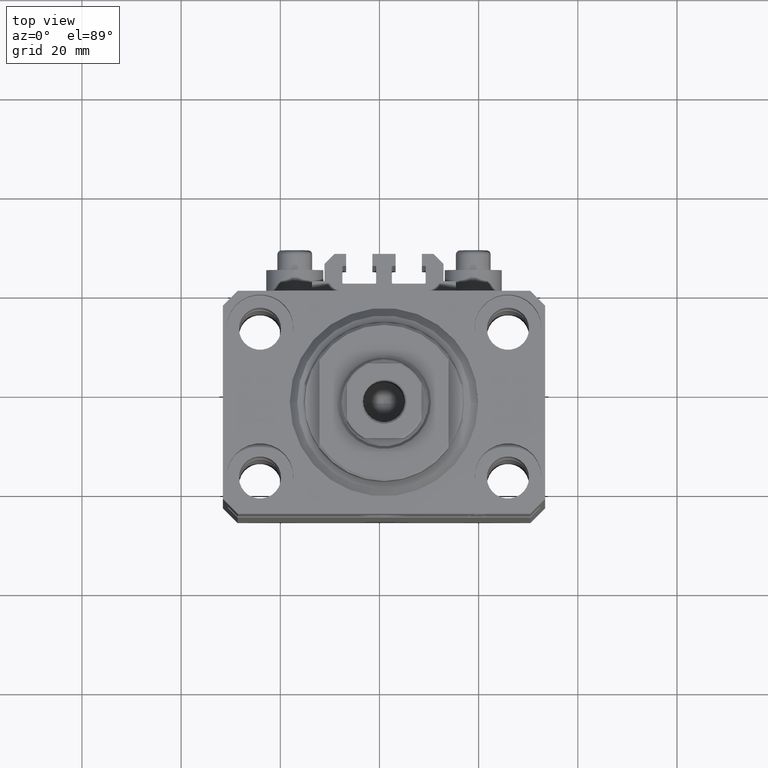
[diagram: clean part render]
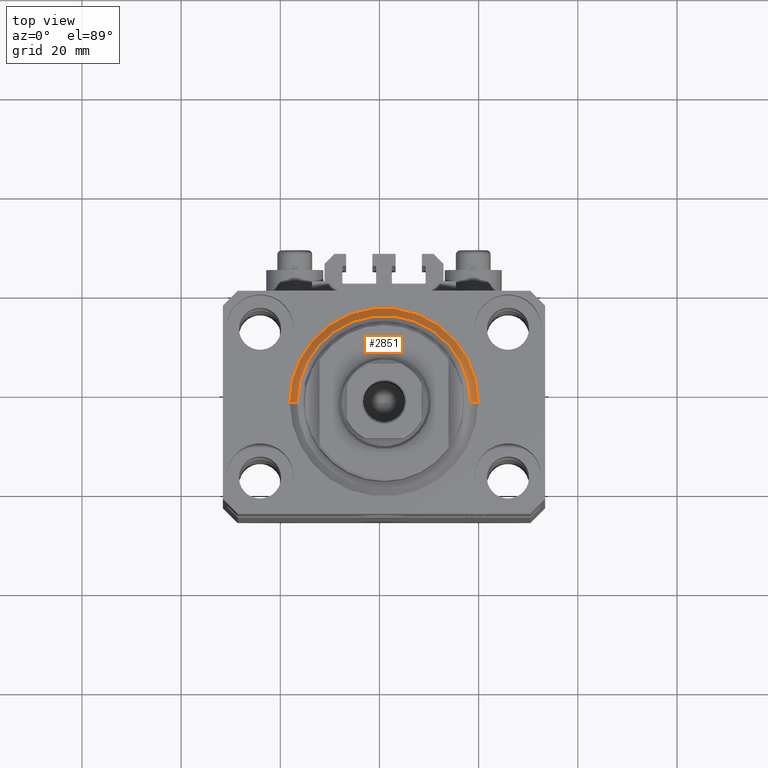
[diagram: same view with one face highlighted and labeled with its STEP entity id]
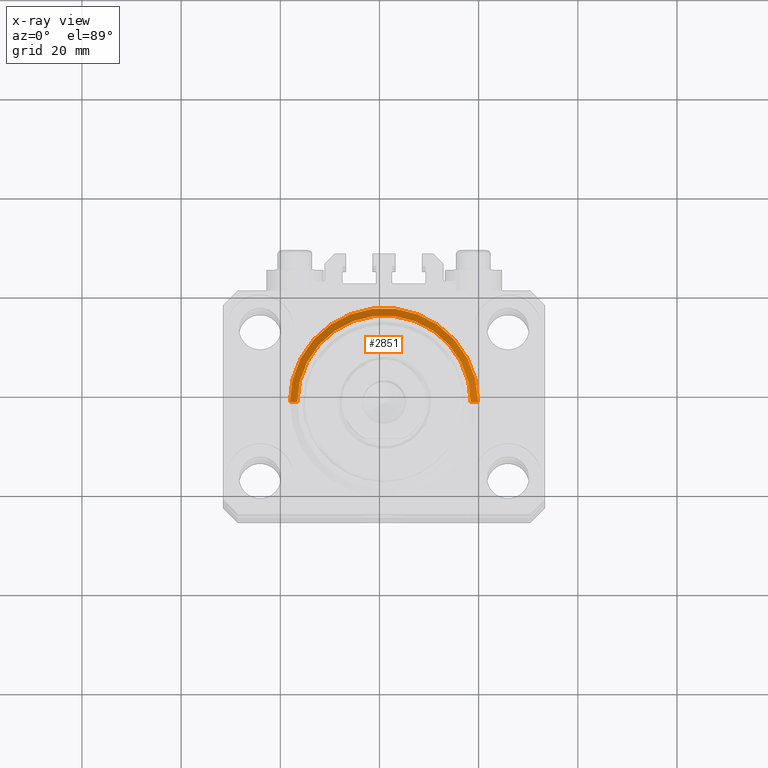
[diagram: x-ray of the same camera — body ghosted, the highlighted face saturated]
A machine part, top view. The second image highlights one B-rep face of the part: STEP entity #2851.
The next image is the same camera in x-ray: the body ghosted, the highlighted face saturated — about 0% of this face is hidden behind the body in this view.
In plain terms, the highlighted conical surface has half-angle 45 deg.
Its self-contained STEP definition (entity closure, byte-faithful):
#2617 = ORIENTED_EDGE ( 'NONE', *, *, #13875, .F. ) ;
#2851 = ADVANCED_FACE ( 'NONE', ( #3315 ), #28849, .T. ) ;
#3315 = FACE_OUTER_BOUND ( 'NONE', #25370, .T. ) ;
#3495 = DIRECTION ( 'NONE',  ( -0.000000000000000000, -0.000000000000000000, -1.000000000000000000 ) ) ;
#4002 = ORIENTED_EDGE ( 'NONE', *, *, #17216, .T. ) ;
#4702 = VERTEX_POINT ( 'NONE', #29815 ) ;
#5249 = CARTESIAN_POINT ( 'NONE',  ( -17.49999999999999645, 2.234980408443919215E-15, 0.000000000000000000 ) ) ;
#6481 = CARTESIAN_POINT ( 'NONE',  ( -19.00000000000000000, 2.326828918379970970E-15, 1.500000000000001332 ) ) ;
#6644 = CARTESIAN_POINT ( 'NONE',  ( 19.00000000000000000, 2.326828918379970970E-15, 1.500000000000001332 ) ) ;
#8613 = CIRCLE ( 'NONE', #45090, 17.49999999999999645 ) ;
#12485 = EDGE_CURVE ( 'NONE', #36639, #4702, #34501, .T. ) ;
#12943 = DIRECTION ( 'NONE',  ( -0.7071067811865483499, 8.659560562354942719E-17, 0.7071067811865467956 ) ) ;
#13875 = EDGE_CURVE ( 'NONE', #36062, #33926, #8613, .T. ) ;
#14290 = DIRECTION ( 'NONE',  ( 1.000000000000000000, 0.000000000000000000, 0.000000000000000000 ) ) ;
#15435 = DIRECTION ( 'NONE',  ( 1.000000000000000000, 0.000000000000000000, 0.000000000000000000 ) ) ;
#17216 = EDGE_CURVE ( 'NONE', #36062, #4702, #39174, .T. ) ;
#19293 = AXIS2_PLACEMENT_3D ( 'NONE', #29366, #26269, #19345 ) ;
#19345 = DIRECTION ( 'NONE',  ( 1.000000000000000000, 0.000000000000000000, 0.000000000000000000 ) ) ;
#21516 = CARTESIAN_POINT ( 'NONE',  ( 17.49999999999999645, 0.000000000000000000, 0.000000000000000000 ) ) ;
#22020 = AXIS2_PLACEMENT_3D ( 'NONE', #29092, #28158, #14290 ) ;
#22700 = ORIENTED_EDGE ( 'NONE', *, *, #12485, .F. ) ;
#24632 = EDGE_CURVE ( 'NONE', #33926, #36639, #28264, .T. ) ;
#25370 = EDGE_LOOP ( 'NONE', ( #2617, #4002, #22700, #33168 ) ) ;
#26269 = DIRECTION ( 'NONE',  ( -0.000000000000000000, -0.000000000000000000, 1.000000000000000000 ) ) ;
#28158 = DIRECTION ( 'NONE',  ( -0.000000000000000000, -0.000000000000000000, 1.000000000000000000 ) ) ;
#28264 = LINE ( 'NONE', #47086, #34749 ) ;
#28849 = CONICAL_SURFACE ( 'NONE', #22020, 19.00000000000000000, 0.7853981633974492782 ) ;
#29092 = CARTESIAN_POINT ( 'NONE',  ( 0.000000000000000000, 0.000000000000000000, 1.500000000000001332 ) ) ;
#29366 = CARTESIAN_POINT ( 'NONE',  ( 0.000000000000000000, 0.000000000000000000, 1.500000000000001332 ) ) ;
#29815 = CARTESIAN_POINT ( 'NONE',  ( -19.00000000000000000, 0.000000000000000000, 1.500000000000001332 ) ) ;
#33168 = ORIENTED_EDGE ( 'NONE', *, *, #24632, .F. ) ;
#33926 = VERTEX_POINT ( 'NONE', #21516 ) ;
#34501 = CIRCLE ( 'NONE', #19293, 19.00000000000000000 ) ;
#34749 = VECTOR ( 'NONE', #43496, 1000.000000000000000 ) ;
#36062 = VERTEX_POINT ( 'NONE', #5249 ) ;
#36193 = CARTESIAN_POINT ( 'NONE',  ( 0.000000000000000000, 0.000000000000000000, 0.000000000000000000 ) ) ;
#36639 = VERTEX_POINT ( 'NONE', #6644 ) ;
#39174 = LINE ( 'NONE', #6481, #40616 ) ;
#40616 = VECTOR ( 'NONE', #12943, 1000.000000000000000 ) ;
#43496 = DIRECTION ( 'NONE',  ( 0.7071067811865483499, 0.000000000000000000, 0.7071067811865467956 ) ) ;
#45090 = AXIS2_PLACEMENT_3D ( 'NONE', #36193, #3495, #15435 ) ;
#47086 = CARTESIAN_POINT ( 'NONE',  ( 19.00000000000000000, 0.000000000000000000, 1.500000000000001332 ) ) ;